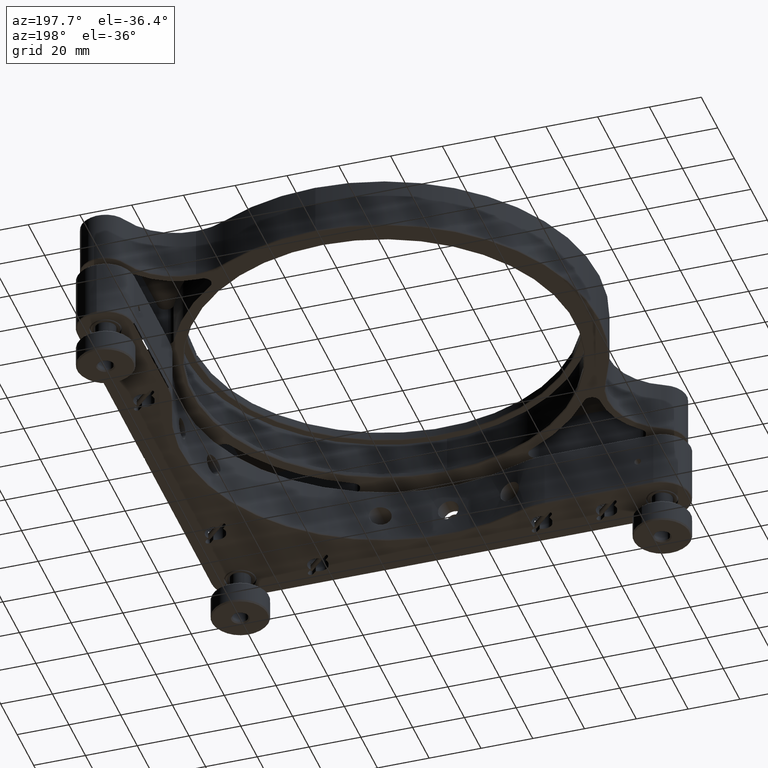
[diagram: clean part render]
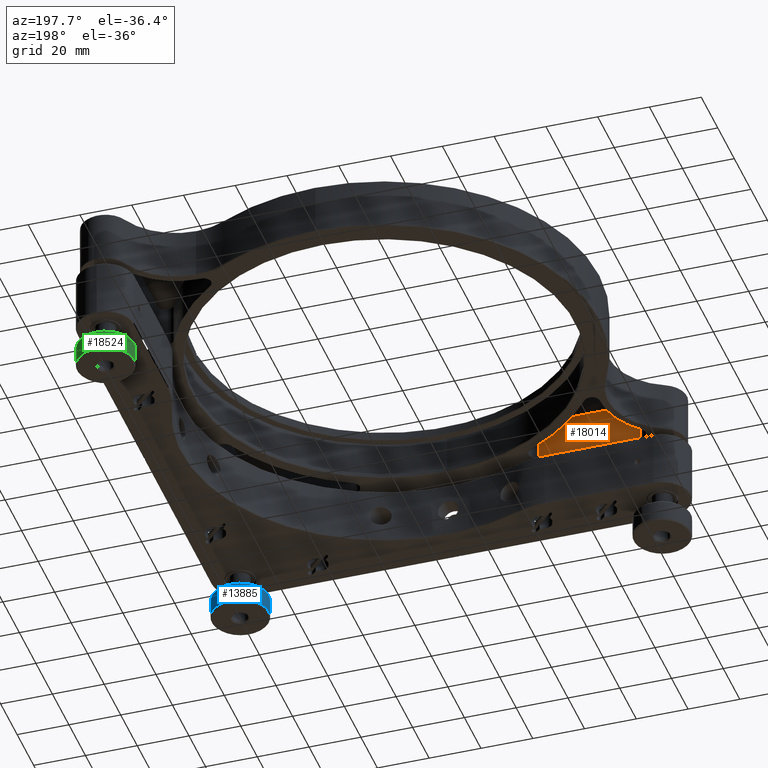
[diagram: same view with three faces highlighted in distinct colors, each labeled with its STEP entity id]
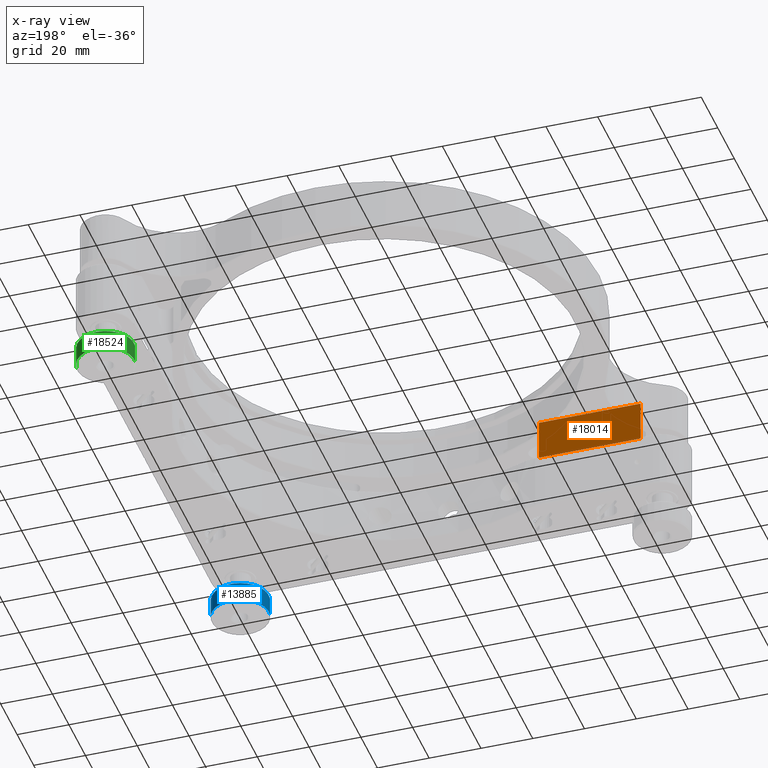
[diagram: x-ray of the same camera — body ghosted, the three highlighted faces saturated]
A machine part, auxiliary view with three faces highlighted in distinct colors.
The next image is the same camera in x-ray (body ghosted, the three faces saturated) — at least one of them is partly hidden behind the body in this view.
Their STEP definitions:

[orange] entity #18014 — the highlighted planar face has unit normal (-0, 1, -0).
#802 = VECTOR ( 'NONE', #8079, 1000.000000000000000 ) ;
#1386 = ORIENTED_EDGE ( 'NONE', *, *, #16188, .F. ) ;
#2141 = LINE ( 'NONE', #5058, #14428 ) ;
#2995 = EDGE_CURVE ( 'NONE', #7807, #13799, #8912, .T. ) ;
#3862 = ORIENTED_EDGE ( 'NONE', *, *, #2995, .T. ) ;
#4101 = CARTESIAN_POINT ( 'NONE',  ( -74.85098610164048694, -75.99999999999975842, 30.49528137423859420 ) ) ;
#5058 = CARTESIAN_POINT ( 'NONE',  ( -35.55896511430086804, -75.99999999999975842, 30.49528137423859420 ) ) ;
#5157 = VECTOR ( 'NONE', #15698, 1000.000000000000000 ) ;
#5168 = DIRECTION ( 'NONE',  ( -2.851821586553310582E-16, 1.000000000000000000, -9.921601396774435020E-37 ) ) ;
#6607 = CARTESIAN_POINT ( 'NONE',  ( -35.55896511430086804, -75.99999999999975842, 30.49528137423859420 ) ) ;
#7342 = LINE ( 'NONE', #13283, #8375 ) ;
#7807 = VERTEX_POINT ( 'NONE', #4101 ) ;
#7898 = EDGE_LOOP ( 'NONE', ( #14291, #1386, #3862, #11276 ) ) ;
#8079 = DIRECTION ( 'NONE',  ( 1.000000000000000000, 2.851821586553310089E-16, -1.460576560598806470E-21 ) ) ;
#8186 = FACE_OUTER_BOUND ( 'NONE', #7898, .T. ) ;
#8272 = DIRECTION ( 'NONE',  ( -1.460576560598801768E-21, 2.733239376776539722E-36, -1.000000000000000000 ) ) ;
#8278 = CARTESIAN_POINT ( 'NONE',  ( -35.55896511430086804, -75.99999999999975842, 14.49528137423859420 ) ) ;
#8375 = VECTOR ( 'NONE', #11984, 1000.000000000000000 ) ;
#8896 = EDGE_CURVE ( 'NONE', #13799, #9829, #2141, .T. ) ;
#8912 = LINE ( 'NONE', #15049, #802 ) ;
#9712 = DIRECTION ( 'NONE',  ( -1.000000000000000000, -2.851821586553310582E-16, 1.460576560598806470E-21 ) ) ;
#9802 = PLANE ( 'NONE',  #13157 ) ;
#9829 = VERTEX_POINT ( 'NONE', #8278 ) ;
#11259 = LINE ( 'NONE', #17114, #5157 ) ;
#11276 = ORIENTED_EDGE ( 'NONE', *, *, #8896, .T. ) ;
#11838 = CARTESIAN_POINT ( 'NONE',  ( -74.85098610164048694, -75.99999999999975842, 14.49528137423859420 ) ) ;
#11984 = DIRECTION ( 'NONE',  ( -1.460576560598801768E-21, 2.733239376776539722E-36, -1.000000000000000000 ) ) ;
#13157 = AXIS2_PLACEMENT_3D ( 'NONE', #14334, #5168, #9712 ) ;
#13283 = CARTESIAN_POINT ( 'NONE',  ( -74.85098610164048694, -75.99999999999975842, 30.49528137423859420 ) ) ;
#13383 = EDGE_CURVE ( 'NONE', #18901, #9829, #11259, .T. ) ;
#13799 = VERTEX_POINT ( 'NONE', #6607 ) ;
#14291 = ORIENTED_EDGE ( 'NONE', *, *, #13383, .F. ) ;
#14334 = CARTESIAN_POINT ( 'NONE',  ( -74.85098610164048694, -75.99999999999975842, 30.49528137423859420 ) ) ;
#14428 = VECTOR ( 'NONE', #8272, 1000.000000000000000 ) ;
#15049 = CARTESIAN_POINT ( 'NONE',  ( -74.85098610164048694, -75.99999999999975842, 30.49528137423859420 ) ) ;
#15698 = DIRECTION ( 'NONE',  ( 1.000000000000000000, 2.851821586553310089E-16, -1.460576560598806470E-21 ) ) ;
#16188 = EDGE_CURVE ( 'NONE', #7807, #18901, #7342, .T. ) ;
#17114 = CARTESIAN_POINT ( 'NONE',  ( -74.85098610164048694, -75.99999999999975842, 14.49528137423859420 ) ) ;
#18014 = ADVANCED_FACE ( 'NONE', ( #8186 ), #9802, .T. ) ;
#18901 = VERTEX_POINT ( 'NONE', #11838 ) ;

[blue] entity #13885 — the highlighted cylindrical surface (edge-blend (fillet) strip) has radius 11 mm, axis along (0, 0, -1).
#87 = VERTEX_POINT ( 'NONE', #10803 ) ;
#108 = LINE ( 'NONE', #6250, #4432 ) ;
#1368 = ORIENTED_EDGE ( 'NONE', *, *, #10935, .T. ) ;
#1721 = CIRCLE ( 'NONE', #16193, 11.00000000000007638 ) ;
#2509 = CIRCLE ( 'NONE', #4105, 11.00000000000007816 ) ;
#3231 = LINE ( 'NONE', #12690, #9998 ) ;
#3329 = ORIENTED_EDGE ( 'NONE', *, *, #18186, .F. ) ;
#3896 = CYLINDRICAL_SURFACE ( 'NONE', #19040, 11.00000000000007638 ) ;
#4105 = AXIS2_PLACEMENT_3D ( 'NONE', #6633, #9673, #12499 ) ;
#4432 = VECTOR ( 'NONE', #12407, 1000.000000000000000 ) ;
#6250 = CARTESIAN_POINT ( 'NONE',  ( 71.43951204226756602, -85.94821110698703137, -20.24735931288060442 ) ) ;
#6437 = DIRECTION ( 'NONE',  ( 1.020631077792295469E-49, 7.091065749223626570E-64, -1.000000000000000000 ) ) ;
#6549 = VERTEX_POINT ( 'NONE', #11054 ) ;
#6633 = CARTESIAN_POINT ( 'NONE',  ( 81.49999999999994316, -81.49999999999992895, -20.74735931288059732 ) ) ;
#6704 = CARTESIAN_POINT ( 'NONE',  ( 81.49999999999994316, -81.49999999999992895, -28.24735931288060087 ) ) ;
#8273 = EDGE_LOOP ( 'NONE', ( #16059, #11655, #1368, #3329 ) ) ;
#9673 = DIRECTION ( 'NONE',  ( 1.020631077792295469E-49, 7.091065749223626570E-64, -1.000000000000000000 ) ) ;
#9934 = DIRECTION ( 'NONE',  ( -0.9145898143393014212, -0.4043828279079147991, 0.000000000000000000 ) ) ;
#9998 = VECTOR ( 'NONE', #6437, 1000.000000000000000 ) ;
#10714 = VERTEX_POINT ( 'NONE', #12473 ) ;
#10803 = CARTESIAN_POINT ( 'NONE',  ( 91.56048795773233451, -77.05178889301282652, -20.74735931288059732 ) ) ;
#10935 = EDGE_CURVE ( 'NONE', #14344, #10714, #1721, .T. ) ;
#11054 = CARTESIAN_POINT ( 'NONE',  ( 71.43951204226756602, -85.94821110698704558, -20.74735931288059732 ) ) ;
#11655 = ORIENTED_EDGE ( 'NONE', *, *, #13315, .T. ) ;
#12407 = DIRECTION ( 'NONE',  ( 1.020631077792295469E-49, 7.091065749223626570E-64, -1.000000000000000000 ) ) ;
#12473 = CARTESIAN_POINT ( 'NONE',  ( 71.43951204226763707, -85.94821110698700295, -28.24735931288060087 ) ) ;
#12499 = DIRECTION ( 'NONE',  ( 0.9145898143393026425, 0.4043828279079121346, 0.000000000000000000 ) ) ;
#12690 = CARTESIAN_POINT ( 'NONE',  ( 91.56048795773233451, -77.05178889301284073, -20.24735931288060442 ) ) ;
#12765 = DIRECTION ( 'NONE',  ( -1.020631077792295469E-49, -7.091065749223626570E-64, 1.000000000000000000 ) ) ;
#12855 = FACE_OUTER_BOUND ( 'NONE', #8273, .T. ) ;
#12860 = DIRECTION ( 'NONE',  ( 0.9145898143393014212, 0.4043828279079147991, 0.000000000000000000 ) ) ;
#13315 = EDGE_CURVE ( 'NONE', #87, #14344, #3231, .T. ) ;
#13885 = ADVANCED_FACE ( 'NONE', ( #12855 ), #3896, .T. ) ;
#14344 = VERTEX_POINT ( 'NONE', #15655 ) ;
#14465 = CARTESIAN_POINT ( 'NONE',  ( 81.49999999999994316, -81.49999999999992895, -20.24735931288060442 ) ) ;
#15655 = CARTESIAN_POINT ( 'NONE',  ( 91.56048795773226345, -77.05178889301286915, -28.24735931288060087 ) ) ;
#15965 = DIRECTION ( 'NONE',  ( 1.020631077792295469E-49, 7.091065749223626570E-64, -1.000000000000000000 ) ) ;
#16059 = ORIENTED_EDGE ( 'NONE', *, *, #18253, .T. ) ;
#16193 = AXIS2_PLACEMENT_3D ( 'NONE', #6704, #12765, #12860 ) ;
#18186 = EDGE_CURVE ( 'NONE', #6549, #10714, #108, .T. ) ;
#18253 = EDGE_CURVE ( 'NONE', #6549, #87, #2509, .T. ) ;
#19040 = AXIS2_PLACEMENT_3D ( 'NONE', #14465, #15965, #9934 ) ;

[green] entity #18524 — the highlighted cylindrical surface (edge-blend (fillet) strip) has radius 11 mm, axis along (0, 0, -1).
#221 = CARTESIAN_POINT ( 'NONE',  ( 70.58891680835066040, 80.10419787043107931, -19.50471862576132409 ) ) ;
#358 = VECTOR ( 'NONE', #11188, 1000.000000000000000 ) ;
#864 = VERTEX_POINT ( 'NONE', #11072 ) ;
#4207 = CIRCLE ( 'NONE', #17372, 11.00000000000007638 ) ;
#4486 = DIRECTION ( 'NONE',  ( 1.020631077792293380E-49, 5.004900010033792112E-64, -1.000000000000000000 ) ) ;
#5049 = LINE ( 'NONE', #221, #358 ) ;
#6355 = EDGE_CURVE ( 'NONE', #864, #16870, #7474, .T. ) ;
#7156 = VERTEX_POINT ( 'NONE', #11366 ) ;
#7185 = ORIENTED_EDGE ( 'NONE', *, *, #15313, .T. ) ;
#7474 = CIRCLE ( 'NONE', #18696, 11.00000000000007638 ) ;
#7758 = VERTEX_POINT ( 'NONE', #8633 ) ;
#8449 = DIRECTION ( 'NONE',  ( 0.9919166537862952326, 0.1268911026880871484, 0.000000000000000000 ) ) ;
#8633 = CARTESIAN_POINT ( 'NONE',  ( 92.41108319164931117, 82.89580212956900596, -20.00471862576132054 ) ) ;
#9890 = AXIS2_PLACEMENT_3D ( 'NONE', #16308, #12186, #16610 ) ;
#10177 = CARTESIAN_POINT ( 'NONE',  ( 81.49999999999998579, 81.50000000000004263, -27.50471862576132054 ) ) ;
#10406 = EDGE_LOOP ( 'NONE', ( #17332, #7185, #18311, #12304 ) ) ;
#10472 = DIRECTION ( 'NONE',  ( 1.020631077792293380E-49, 5.004900010033792112E-64, -1.000000000000000000 ) ) ;
#11072 = CARTESIAN_POINT ( 'NONE',  ( 92.41108319164924012, 82.89580212956900596, -27.50471862576132054 ) ) ;
#11188 = DIRECTION ( 'NONE',  ( 1.020631077792293380E-49, 5.004900010033792112E-64, -1.000000000000000000 ) ) ;
#11366 = CARTESIAN_POINT ( 'NONE',  ( 70.58891680835066040, 80.10419787043107931, -20.00471862576132054 ) ) ;
#11879 = DIRECTION ( 'NONE',  ( 0.9919166537862952326, 0.1268911026880883974, 0.000000000000000000 ) ) ;
#12158 = LINE ( 'NONE', #13463, #16402 ) ;
#12186 = DIRECTION ( 'NONE',  ( 1.020631077792293380E-49, 5.004900010033792112E-64, -1.000000000000000000 ) ) ;
#12304 = ORIENTED_EDGE ( 'NONE', *, *, #16900, .F. ) ;
#13083 = DIRECTION ( 'NONE',  ( -1.020631077792293380E-49, -5.004900010033792112E-64, 1.000000000000000000 ) ) ;
#13190 = FACE_OUTER_BOUND ( 'NONE', #10406, .T. ) ;
#13463 = CARTESIAN_POINT ( 'NONE',  ( 92.41108319164931117, 82.89580212956900596, -19.50471862576132409 ) ) ;
#13537 = EDGE_CURVE ( 'NONE', #7156, #7758, #4207, .T. ) ;
#13588 = CARTESIAN_POINT ( 'NONE',  ( 81.49999999999998579, 81.50000000000004263, -20.00471862576132054 ) ) ;
#15313 = EDGE_CURVE ( 'NONE', #7758, #864, #12158, .T. ) ;
#16308 = CARTESIAN_POINT ( 'NONE',  ( 81.49999999999998579, 81.50000000000004263, -19.50471862576132409 ) ) ;
#16402 = VECTOR ( 'NONE', #4486, 1000.000000000000000 ) ;
#16610 = DIRECTION ( 'NONE',  ( -0.9919166537862952326, -0.1268911026880871484, 0.000000000000000000 ) ) ;
#16870 = VERTEX_POINT ( 'NONE', #17235 ) ;
#16900 = EDGE_CURVE ( 'NONE', #7156, #16870, #5049, .T. ) ;
#17235 = CARTESIAN_POINT ( 'NONE',  ( 70.58891680835073146, 80.10419787043109352, -27.50471862576132054 ) ) ;
#17332 = ORIENTED_EDGE ( 'NONE', *, *, #13537, .T. ) ;
#17372 = AXIS2_PLACEMENT_3D ( 'NONE', #13588, #10472, #11879 ) ;
#18311 = ORIENTED_EDGE ( 'NONE', *, *, #6355, .T. ) ;
#18524 = ADVANCED_FACE ( 'NONE', ( #13190 ), #19311, .T. ) ;
#18696 = AXIS2_PLACEMENT_3D ( 'NONE', #10177, #13083, #8449 ) ;
#19311 = CYLINDRICAL_SURFACE ( 'NONE', #9890, 11.00000000000007638 ) ;